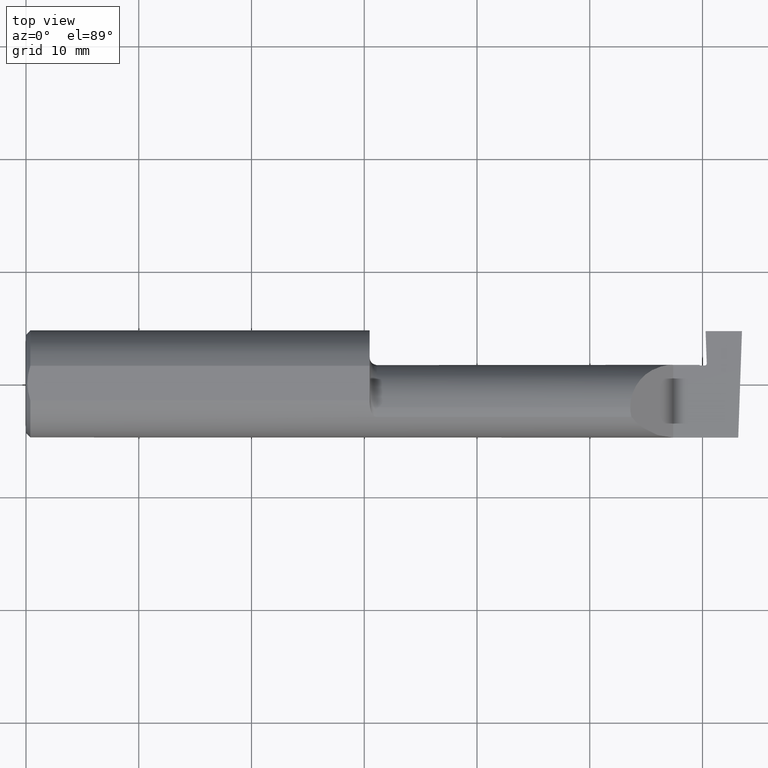
[diagram: clean part render]
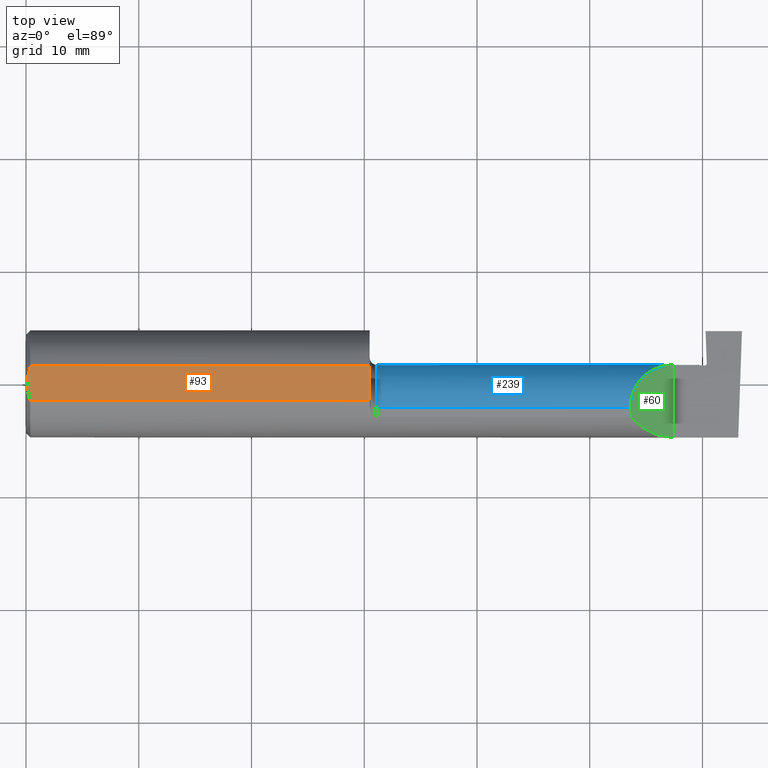
[diagram: same view with three faces highlighted in distinct colors, each labeled with its STEP entity id]
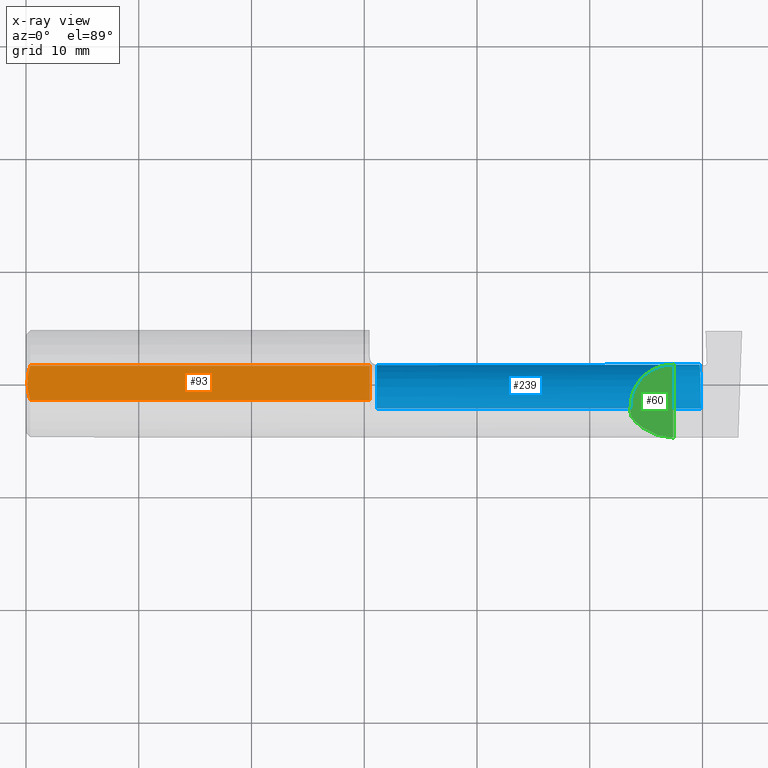
[diagram: x-ray of the same camera — body ghosted, the three highlighted faces saturated]
A machine part, top view with three faces highlighted in distinct colors.
The next image is the same camera in x-ray (body ghosted, the three faces saturated) — at least one of them is partly hidden behind the body in this view.
Their STEP definitions:

[orange] entity #93 — the highlighted planar face has unit normal (0, -0, 1).
#2 = CARTESIAN_POINT ( 'NONE',  ( 0.004999999999999833571, -0.01026662907944655458, 0.1773499999999999521 ) ) ;
#14 = ORIENTED_EDGE ( 'NONE', *, *, #126, .T. ) ;
#23 = VECTOR ( 'NONE', #57, 39.37007874015748143 ) ;
#27 = VERTEX_POINT ( 'NONE', #456 ) ;
#28 = DIRECTION ( 'NONE',  ( -1.000000000000000000, -0.000000000000000000, -0.000000000000000000 ) ) ;
#45 = CARTESIAN_POINT ( 'NONE',  ( 0.004999999999999839642, 0.01027925662263861305, 0.1773499999999999799 ) ) ;
#57 = DIRECTION ( 'NONE',  ( 1.000000000000000000, 0.000000000000000000, 0.000000000000000000 ) ) ;
#93 = ADVANCED_FACE ( 'NONE', ( #374 ), #366, .T. ) ;
#95 = ORIENTED_EDGE ( 'NONE', *, *, #771, .T. ) ;
#117 = B_SPLINE_CURVE_WITH_KNOTS ( 'NONE', 3,
 ( #164, #2, #1029, #631, #643, #320 ),
 .UNSPECIFIED., .F., .F.,
 ( 4, 2, 4 ),
 ( 0.005750933109916887831, 0.006521788775031543001, 0.007292644440146199038 ),
 .UNSPECIFIED. ) ;
#126 = EDGE_CURVE ( 'NONE', #27, #412, #478, .T. ) ;
#158 = CARTESIAN_POINT ( 'NONE',  ( 0.01499999999999756042, 0.06039039658754215278, 0.1773499999999999799 ) ) ;
#164 = CARTESIAN_POINT ( 'NONE',  ( 0.004999999999999835305, 2.941982542510190671E-17, 0.1773499999999999799 ) ) ;
#194 = CARTESIAN_POINT ( 'NONE',  ( 0.01499999999999756042, 0.06039039658754215278, 0.1773499999999999799 ) ) ;
#229 = EDGE_CURVE ( 'NONE', #502, #684, #117, .T. ) ;
#236 = CARTESIAN_POINT ( 'NONE',  ( 1.199999999999999956, -0.1873500000000000165, 0.1773499999999999799 ) ) ;
#247 = CARTESIAN_POINT ( 'NONE',  ( 0.000000000000000000, 0.06039039658753697637, 0.1773499999999999799 ) ) ;
#265 = CARTESIAN_POINT ( 'NONE',  ( 0.01499999999999999944, -0.06039039658753697637, 0.1773499999999999799 ) ) ;
#300 = ORIENTED_EDGE ( 'NONE', *, *, #623, .T. ) ;
#320 = CARTESIAN_POINT ( 'NONE',  ( 0.01499999999999999944, -0.06039039658753697637, 0.1773499999999999799 ) ) ;
#366 = PLANE ( 'NONE',  #729 ) ;
#367 = VECTOR ( 'NONE', #28, 39.37007874015748143 ) ;
#374 = FACE_OUTER_BOUND ( 'NONE', #512, .T. ) ;
#412 = VERTEX_POINT ( 'NONE', #687 ) ;
#454 = LINE ( 'NONE', #788, #23 ) ;
#456 = CARTESIAN_POINT ( 'NONE',  ( 1.199999999999999956, -0.06039039658753695555, 0.1773499999999999799 ) ) ;
#478 = LINE ( 'NONE', #236, #865 ) ;
#502 = VERTEX_POINT ( 'NONE', #875 ) ;
#504 = VERTEX_POINT ( 'NONE', #158 ) ;
#512 = EDGE_LOOP ( 'NONE', ( #826, #14, #300, #95, #661 ) ) ;
#607 = CARTESIAN_POINT ( 'NONE',  ( 0.004999999999999835305, 2.941982542510190671E-17, 0.1773499999999999799 ) ) ;
#623 = EDGE_CURVE ( 'NONE', #412, #504, #756, .T. ) ;
#631 = CARTESIAN_POINT ( 'NONE',  ( 0.009318557230853204490, -0.04061090184993776386, 0.1773499999999999799 ) ) ;
#643 = CARTESIAN_POINT ( 'NONE',  ( 0.01186375298701897348, -0.05066077215909271098, 0.1773499999999999799 ) ) ;
#659 = B_SPLINE_CURVE_WITH_KNOTS ( 'NONE', 3,
 ( #194, #860, #851, #1006, #45, #607 ),
 .UNSPECIFIED., .F., .F.,
 ( 4, 2, 4 ),
 ( 0.004207325536406422359, 0.004979129323161655095, 0.005750933109916887831 ),
 .UNSPECIFIED. ) ;
#661 = ORIENTED_EDGE ( 'NONE', *, *, #229, .T. ) ;
#684 = VERTEX_POINT ( 'NONE', #265 ) ;
#687 = CARTESIAN_POINT ( 'NONE',  ( 1.199999999999999956, 0.06039039658754216666, 0.1773499999999999799 ) ) ;
#708 = DIRECTION ( 'NONE',  ( 0.000000000000000000, -0.000000000000000000, 1.000000000000000000 ) ) ;
#729 = AXIS2_PLACEMENT_3D ( 'NONE', #934, #708, #858 ) ;
#756 = LINE ( 'NONE', #247, #367 ) ;
#771 = EDGE_CURVE ( 'NONE', #504, #502, #659, .T. ) ;
#788 = CARTESIAN_POINT ( 'NONE',  ( 0.000000000000000000, -0.06039039658753697637, 0.1773499999999999799 ) ) ;
#802 = EDGE_CURVE ( 'NONE', #684, #27, #454, .T. ) ;
#826 = ORIENTED_EDGE ( 'NONE', *, *, #802, .T. ) ;
#851 = CARTESIAN_POINT ( 'NONE',  ( 0.009346310357820472939, 0.04072930668827419443, 0.1773500000000000354 ) ) ;
#858 = DIRECTION ( 'NONE',  ( 1.000000000000000000, 0.000000000000000000, -0.000000000000000000 ) ) ;
#860 = CARTESIAN_POINT ( 'NONE',  ( 0.01185291896084217714, 0.05062716160312498437, 0.1773499999999999521 ) ) ;
#865 = VECTOR ( 'NONE', #962, 39.37007874015748143 ) ;
#875 = CARTESIAN_POINT ( 'NONE',  ( 0.004999999999999835305, 2.941982542510190671E-17, 0.1773499999999999799 ) ) ;
#934 = CARTESIAN_POINT ( 'NONE',  ( 2.500000000000000000, -0.1873500000000000165, 0.1773499999999999799 ) ) ;
#962 = DIRECTION ( 'NONE',  ( -0.000000000000000000, 1.000000000000000000, 0.000000000000000000 ) ) ;
#1006 = CARTESIAN_POINT ( 'NONE',  ( 0.005916828623699125177, 0.02060071390057613763, 0.1773499999999999799 ) ) ;
#1029 = CARTESIAN_POINT ( 'NONE',  ( 0.005896899252109314912, -0.02043863390046160924, 0.1773500000000000354 ) ) ;

[blue] entity #239 — the highlighted cylindrical surface (partial cylindrical patch) has radius 3.81 mm, axis along (-1, -0, -0).
#3 = B_SPLINE_CURVE_WITH_KNOTS ( 'NONE', 3,
 ( #949, #779, #123, #945, #145, #872, #544, #141, #688, #533, #207, #617, #52, #1003 ),
 .UNSPECIFIED., .F., .F.,
 ( 4, 2, 2, 2, 2, 2, 4 ),
 ( 0.000000000000000000, 0.001502809950118668336, 0.002254214925178002395, 0.003005619900237336238, 0.003757024875296669213, 0.004508429850356003056, 0.006011239800474670741 ),
 .UNSPECIFIED. ) ;
#8 = CARTESIAN_POINT ( 'NONE',  ( 1.225000000000000089, -0.08334999999999996578, 0.000000000000000000 ) ) ;
#15 = EDGE_CURVE ( 'NONE', #975, #30, #3, .T. ) ;
#30 = VERTEX_POINT ( 'NONE', #1014 ) ;
#52 = CARTESIAN_POINT ( 'NONE',  ( 2.356822553834128975, -0.06360488473810023413, -0.1500000000000002165 ) ) ;
#73 = VECTOR ( 'NONE', #918, 39.37007874015748143 ) ;
#80 = DIRECTION ( 'NONE',  ( 0.000000000000000000, 0.000000000000000000, 1.000000000000000000 ) ) ;
#121 = CARTESIAN_POINT ( 'NONE',  ( 2.110000000000000764, -0.08334999999999996578, 0.1499999999999999667 ) ) ;
#123 = CARTESIAN_POINT ( 'NONE',  ( 2.352486253893913304, 0.06268192306513749312, -0.03944645064870973272 ) ) ;
#141 = CARTESIAN_POINT ( 'NONE',  ( 2.355342065343055680, 0.01578456973343240338, -0.1129971894526454190 ) ) ;
#145 = CARTESIAN_POINT ( 'NONE',  ( 2.353917126139582816, 0.04676323683062067610, -0.07527905847017138385 ) ) ;
#207 = CARTESIAN_POINT ( 'NONE',  ( 2.356194501908373429, -0.01680791226147508241, -0.1347941664736702072 ) ) ;
#212 = VERTEX_POINT ( 'NONE', #224 ) ;
#224 = CARTESIAN_POINT ( 'NONE',  ( 2.260000000000000231, 0.06664999999999998703, 2.939152317953647352E-17 ) ) ;
#239 = ADVANCED_FACE ( 'NONE', ( #470 ), #733, .T. ) ;
#253 = LINE ( 'NONE', #658, #697 ) ;
#268 = EDGE_LOOP ( 'NONE', ( #393, #424, #755, #823, #1039, #680 ) ) ;
#309 = EDGE_CURVE ( 'NONE', #212, #975, #451, .T. ) ;
#337 = VERTEX_POINT ( 'NONE', #861 ) ;
#372 = CARTESIAN_POINT ( 'NONE',  ( 1.225000000000000089, -0.08334999999999996578, 0.1499999999999999667 ) ) ;
#393 = ORIENTED_EDGE ( 'NONE', *, *, #15, .T. ) ;
#424 = ORIENTED_EDGE ( 'NONE', *, *, #622, .T. ) ;
#445 = CARTESIAN_POINT ( 'NONE',  ( 1.199999999999999956, -0.08334999999999996578, 0.1499999999999999667 ) ) ;
#451 = LINE ( 'NONE', #768, #1031 ) ;
#470 = FACE_OUTER_BOUND ( 'NONE', #268, .T. ) ;
#479 = DIRECTION ( 'NONE',  ( -1.000000000000000000, -0.000000000000000000, -0.000000000000000000 ) ) ;
#524 = CARTESIAN_POINT ( 'NONE',  ( 2.110000000000000764, -0.08334999999999996578, 0.1499999999999999667 ) ) ;
#526 = CIRCLE ( 'NONE', #667, 0.1499999999999999667 ) ;
#533 = CARTESIAN_POINT ( 'NONE',  ( 2.356046470374675295, -0.008191954808419422973, -0.1301800712282043804 ) ) ;
#544 = CARTESIAN_POINT ( 'NONE',  ( 2.354779515171548265, 0.02964325316780595798, -0.09913905627443664326 ) ) ;
#549 = CARTESIAN_POINT ( 'NONE',  ( 1.199999999999999956, -0.08334999999999996578, 0.000000000000000000 ) ) ;
#561 = DIRECTION ( 'NONE',  ( -1.000000000000000000, -0.000000000000000000, -0.000000000000000000 ) ) ;
#595 = CARTESIAN_POINT ( 'NONE',  ( 2.110000000000000764, 0.004517965644035819121, 0.1499999999999999944 ) ) ;
#617 = CARTESIAN_POINT ( 'NONE',  ( 2.356602301954178191, -0.04414777185851587182, -0.1461247834300375137 ) ) ;
#622 = EDGE_CURVE ( 'NONE', #30, #337, #253, .T. ) ;
#629 =( BOUNDED_CURVE ( )  B_SPLINE_CURVE ( 3, ( #121, #595, #927, #696 ),
 .UNSPECIFIED., .F., .F. ) 
 B_SPLINE_CURVE_WITH_KNOTS ( ( 4, 4 ),
 ( 0.000000000000000000, 1.570796326794897446 ),
 .UNSPECIFIED. ) 
 CURVE ( )  GEOMETRIC_REPRESENTATION_ITEM ( )  RATIONAL_B_SPLINE_CURVE ( ( 1.000000000000000000, 0.8047378541243648264, 0.8047378541243648264, 1.000000000000000000 ) ) 
 REPRESENTATION_ITEM ( '' )  );
#658 = CARTESIAN_POINT ( 'NONE',  ( 1.199999999999999956, -0.08334999999999995191, -0.1499999999999999667 ) ) ;
#667 = AXIS2_PLACEMENT_3D ( 'NONE', #8, #479, #731 ) ;
#671 = EDGE_CURVE ( 'NONE', #1034, #212, #629, .T. ) ;
#680 = ORIENTED_EDGE ( 'NONE', *, *, #309, .T. ) ;
#688 = CARTESIAN_POINT ( 'NONE',  ( 2.355626808261134464, 0.008070051745374734117, -0.1193229099581176317 ) ) ;
#696 = CARTESIAN_POINT ( 'NONE',  ( 2.260000000000000231, 0.06664999999999998703, 2.939152317953647352E-17 ) ) ;
#697 = VECTOR ( 'NONE', #973, 39.37007874015748143 ) ;
#731 = DIRECTION ( 'NONE',  ( 0.000000000000000000, 0.000000000000000000, 1.000000000000000000 ) ) ;
#733 = CYLINDRICAL_SURFACE ( 'NONE', #900, 0.1499999999999999667 ) ;
#736 = EDGE_CURVE ( 'NONE', #1034, #808, #1001, .T. ) ;
#755 = ORIENTED_EDGE ( 'NONE', *, *, #847, .F. ) ;
#768 = CARTESIAN_POINT ( 'NONE',  ( 1.199999999999999956, 0.06665000000000001479, 1.592040838891560081E-16 ) ) ;
#779 = CARTESIAN_POINT ( 'NONE',  ( 2.351759725398430589, 0.06664999999496627747, -0.01979752163667308426 ) ) ;
#808 = VERTEX_POINT ( 'NONE', #372 ) ;
#823 = ORIENTED_EDGE ( 'NONE', *, *, #736, .F. ) ;
#843 = DIRECTION ( 'NONE',  ( 1.000000000000000000, 0.000000000000000000, 0.000000000000000000 ) ) ;
#847 = EDGE_CURVE ( 'NONE', #808, #337, #526, .T. ) ;
#861 = CARTESIAN_POINT ( 'NONE',  ( 1.225000000000000089, -0.08334999999999995191, -0.1499999999999999667 ) ) ;
#872 = CARTESIAN_POINT ( 'NONE',  ( 2.354501696844260472, 0.03584078263305594952, -0.09159666139121158679 ) ) ;
#900 = AXIS2_PLACEMENT_3D ( 'NONE', #549, #561, #80 ) ;
#918 = DIRECTION ( 'NONE',  ( -1.000000000000000000, -0.000000000000000000, -0.000000000000000000 ) ) ;
#927 = CARTESIAN_POINT ( 'NONE',  ( 2.172132034355964691, 0.06665000000000009805, 0.08786796564403566434 ) ) ;
#945 = CARTESIAN_POINT ( 'NONE',  ( 2.353584322644744375, 0.05145648400323140498, -0.06650224151415776164 ) ) ;
#949 = CARTESIAN_POINT ( 'NONE',  ( 2.351000000000295298, 0.06664999999970511180, 1.435438964408816161E-17 ) ) ;
#971 = CARTESIAN_POINT ( 'NONE',  ( 2.351000000000295298, 0.06664999999970511180, 1.435438964408816161E-17 ) ) ;
#973 = DIRECTION ( 'NONE',  ( -1.000000000000000000, -0.000000000000000000, -0.000000000000000000 ) ) ;
#975 = VERTEX_POINT ( 'NONE', #971 ) ;
#1001 = LINE ( 'NONE', #445, #73 ) ;
#1003 = CARTESIAN_POINT ( 'NONE',  ( 2.356802068403776929, -0.08335000000000178377, -0.1499999999999999667 ) ) ;
#1014 = CARTESIAN_POINT ( 'NONE',  ( 2.356802068403776929, -0.08335000000000178377, -0.1499999999999999667 ) ) ;
#1031 = VECTOR ( 'NONE', #843, 39.37007874015748143 ) ;
#1034 = VERTEX_POINT ( 'NONE', #524 ) ;
#1039 = ORIENTED_EDGE ( 'NONE', *, *, #671, .T. ) ;

[green] entity #60 — the highlighted planar face has unit normal (-0.7071, 0, -0.7071).
#47 = PLANE ( 'NONE',  #168 ) ;
#54 = CARTESIAN_POINT ( 'NONE',  ( 2.110000000000000764, -0.08334999999999996578, 0.1499999999999999667 ) ) ;
#59 = FACE_OUTER_BOUND ( 'NONE', #417, .T. ) ;
#60 = ADVANCED_FACE ( 'NONE', ( #59 ), #47, .F. ) ;
#90 = CARTESIAN_POINT ( 'NONE',  ( 2.113883229301070088, -0.1172600179964004286, 0.1461167706989304482 ) ) ;
#121 = CARTESIAN_POINT ( 'NONE',  ( 2.110000000000000764, -0.08334999999999996578, 0.1499999999999999667 ) ) ;
#148 = ORIENTED_EDGE ( 'NONE', *, *, #354, .F. ) ;
#168 = AXIS2_PLACEMENT_3D ( 'NONE', #941, #362, #699 ) ;
#183 = ORIENTED_EDGE ( 'NONE', *, *, #656, .F. ) ;
#196 = ORIENTED_EDGE ( 'NONE', *, *, #953, .T. ) ;
#212 = VERTEX_POINT ( 'NONE', #224 ) ;
#215 = CARTESIAN_POINT ( 'NONE',  ( 2.113883229301070088, -0.1172600179964004286, 0.1461167706989304482 ) ) ;
#224 = CARTESIAN_POINT ( 'NONE',  ( 2.260000000000000231, 0.06664999999999998703, 2.939152317953647352E-17 ) ) ;
#291 = CARTESIAN_POINT ( 'NONE',  ( 2.110000000000000320, -0.09477667630339407789, 0.1499999999999999667 ) ) ;
#346 = ORIENTED_EDGE ( 'NONE', *, *, #671, .F. ) ;
#354 = EDGE_CURVE ( 'NONE', #881, #1034, #600, .T. ) ;
#362 = DIRECTION ( 'NONE',  ( -0.7071067811865496822, 0.000000000000000000, -0.7071067811865454633 ) ) ;
#411 = DIRECTION ( 'NONE',  ( -0.000000000000000000, 1.000000000000000000, -0.000000000000000000 ) ) ;
#417 = EDGE_LOOP ( 'NONE', ( #148, #183, #196, #346 ) ) ;
#518 =( BOUNDED_CURVE ( )  B_SPLINE_CURVE ( 3, ( #819, #568, #745, #90 ),
 .UNSPECIFIED., .F., .T. ) 
 B_SPLINE_CURVE_WITH_KNOTS ( ( 4, 4 ),
 ( 4.712388980384688786, 5.606916381293138407 ),
 .UNSPECIFIED. ) 
 CURVE ( )  GEOMETRIC_REPRESENTATION_ITEM ( )  RATIONAL_B_SPLINE_CURVE ( ( 1.000000000000000000, 0.9344226172588800949, 0.9344226172588800949, 1.000000000000000000 ) ) 
 REPRESENTATION_ITEM ( '' )  );
#524 = CARTESIAN_POINT ( 'NONE',  ( 2.110000000000000764, -0.08334999999999996578, 0.1499999999999999667 ) ) ;
#562 = LINE ( 'NONE', #897, #724 ) ;
#568 = CARTESIAN_POINT ( 'NONE',  ( 2.202189699843949189, -0.1873500000000000443, 0.05781030015605114619 ) ) ;
#595 = CARTESIAN_POINT ( 'NONE',  ( 2.110000000000000764, 0.004517965644035819121, 0.1499999999999999944 ) ) ;
#600 =( BOUNDED_CURVE ( )  B_SPLINE_CURVE ( 3, ( #215, #1007, #291, #54 ),
 .UNSPECIFIED., .F., .F. ) 
 B_SPLINE_CURVE_WITH_KNOTS ( ( 4, 4 ),
 ( 6.055147272130144032, 6.283185307179586232 ),
 .UNSPECIFIED. ) 
 CURVE ( )  GEOMETRIC_REPRESENTATION_ITEM ( )  RATIONAL_B_SPLINE_CURVE ( ( 1.000000000000000000, 0.9956712472009929815, 0.9956712472009929815, 1.000000000000000000 ) ) 
 REPRESENTATION_ITEM ( '' )  );
#629 =( BOUNDED_CURVE ( )  B_SPLINE_CURVE ( 3, ( #121, #595, #927, #696 ),
 .UNSPECIFIED., .F., .F. ) 
 B_SPLINE_CURVE_WITH_KNOTS ( ( 4, 4 ),
 ( 0.000000000000000000, 1.570796326794897446 ),
 .UNSPECIFIED. ) 
 CURVE ( )  GEOMETRIC_REPRESENTATION_ITEM ( )  RATIONAL_B_SPLINE_CURVE ( ( 1.000000000000000000, 0.8047378541243648264, 0.8047378541243648264, 1.000000000000000000 ) ) 
 REPRESENTATION_ITEM ( '' )  );
#656 = EDGE_CURVE ( 'NONE', #710, #881, #518, .T. ) ;
#671 = EDGE_CURVE ( 'NONE', #1034, #212, #629, .T. ) ;
#696 = CARTESIAN_POINT ( 'NONE',  ( 2.260000000000000231, 0.06664999999999998703, 2.939152317953647352E-17 ) ) ;
#699 = DIRECTION ( 'NONE',  ( -0.7071067811865454633, 0.000000000000000000, 0.7071067811865496822 ) ) ;
#710 = VERTEX_POINT ( 'NONE', #773 ) ;
#724 = VECTOR ( 'NONE', #411, 39.37007874015748143 ) ;
#725 = CARTESIAN_POINT ( 'NONE',  ( 2.113883229301070088, -0.1172600179964004286, 0.1461167706989304482 ) ) ;
#745 = CARTESIAN_POINT ( 'NONE',  ( 2.150065971957466182, -0.1623470442677541203, 0.1099340280425339378 ) ) ;
#773 = CARTESIAN_POINT ( 'NONE',  ( 2.260000000000000231, -0.1873499999999999888, 2.939152317953647352E-17 ) ) ;
#819 = CARTESIAN_POINT ( 'NONE',  ( 2.260000000000000231, -0.1873499999999999888, 2.939152317953647352E-17 ) ) ;
#881 = VERTEX_POINT ( 'NONE', #725 ) ;
#897 = CARTESIAN_POINT ( 'NONE',  ( 2.260000000000000231, -0.2000000000000000111, 2.939152317953647352E-17 ) ) ;
#927 = CARTESIAN_POINT ( 'NONE',  ( 2.172132034355964691, 0.06665000000000009805, 0.08786796564403566434 ) ) ;
#941 = CARTESIAN_POINT ( 'NONE',  ( 2.260000000000000231, -0.2000000000000000111, 2.939152317953647352E-17 ) ) ;
#953 = EDGE_CURVE ( 'NONE', #710, #212, #562, .T. ) ;
#1007 = CARTESIAN_POINT ( 'NONE',  ( 2.111300037307155986, -0.1061291577212407494, 0.1486999626928445783 ) ) ;
#1034 = VERTEX_POINT ( 'NONE', #524 ) ;